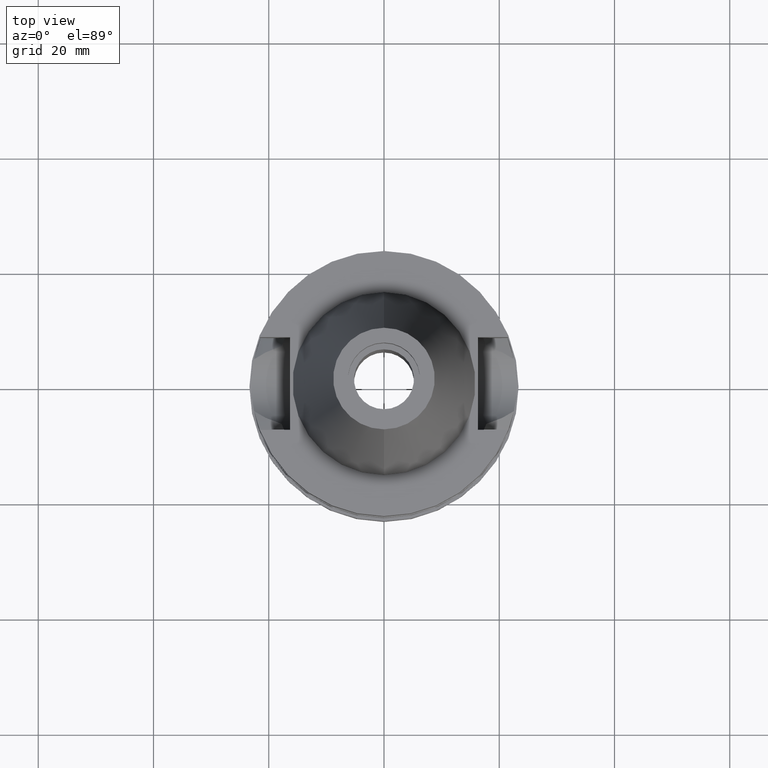
[diagram: clean part render]
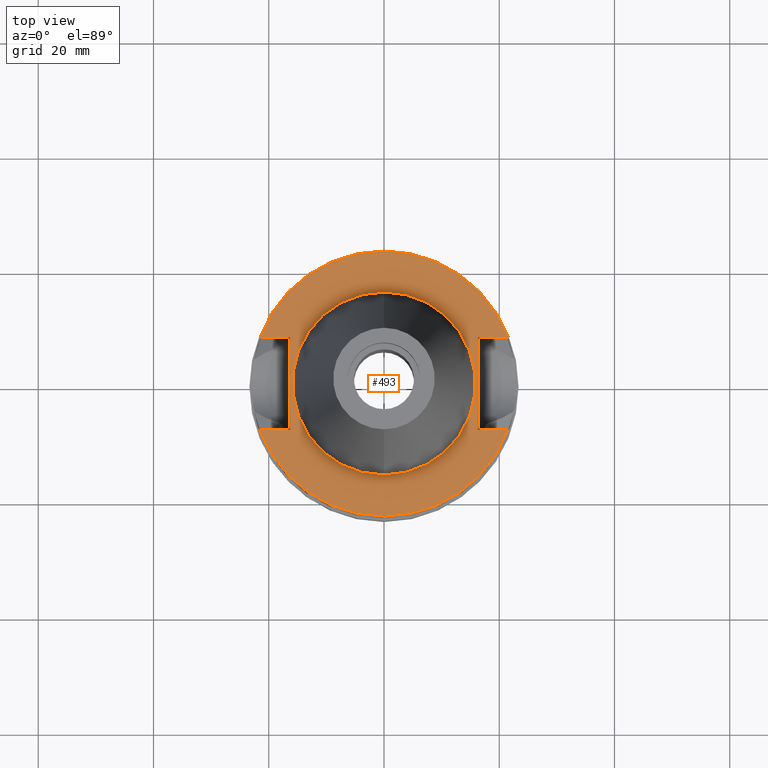
[diagram: same view with one face highlighted and labeled with its STEP entity id]
A machine part, top view. The second image highlights one B-rep face of the part: STEP entity #493.
In plain terms, the highlighted planar face has unit normal (0, 0, -1).
Its self-contained STEP definition (entity closure, byte-faithful):
#10 = VERTEX_POINT ( 'NONE', #2757 ) ;
#39 = AXIS2_PLACEMENT_3D ( 'NONE', #1466, #2415, #1002 ) ;
#50 = ORIENTED_EDGE ( 'NONE', *, *, #664, .F. ) ;
#113 = EDGE_CURVE ( 'NONE', #710, #2600, #1117, .T. ) ;
#189 = CARTESIAN_POINT ( 'NONE',  ( -16.29999999999999716, 8.050000000000000711, -1.000000000000000000 ) ) ;
#266 = DIRECTION ( 'NONE',  ( 1.000000000000000000, 9.380896855521999773E-14, 0.0000000000000000000 ) ) ;
#316 = CARTESIAN_POINT ( 'NONE',  ( 16.29999999999999716, 8.050000000000000711, -1.000000000000000000 ) ) ;
#341 = VECTOR ( 'NONE', #1131, 1000.000000000000000 ) ;
#372 = DIRECTION ( 'NONE',  ( -1.000000000000000000, -9.313164748262000573E-14, 0.0000000000000000000 ) ) ;
#393 = CARTESIAN_POINT ( 'NONE',  ( -16.29999999999999716, -8.050000000000000711, -1.000000000000000000 ) ) ;
#398 = DIRECTION ( 'NONE',  ( 0.0000000000000000000, 1.000000000000000000, 0.0000000000000000000 ) ) ;
#401 = CARTESIAN_POINT ( 'NONE',  ( 16.29999999999999716, 8.050000000000000711, -1.000000000000000000 ) ) ;
#406 = AXIS2_PLACEMENT_3D ( 'NONE', #1979, #618, #635 ) ;
#428 = VERTEX_POINT ( 'NONE', #401 ) ;
#436 = AXIS2_PLACEMENT_3D ( 'NONE', #2185, #1498, #1254 ) ;
#493 = ADVANCED_FACE ( 'NONE', ( #1981, #2905 ), #2684, .F. ) ;
#618 = DIRECTION ( 'NONE',  ( 0.0000000000000000000, 0.0000000000000000000, 1.000000000000000000 ) ) ;
#621 = CARTESIAN_POINT ( 'NONE',  ( 0.0000000000000000000, 0.0000000000000000000, -1.000000000000000000 ) ) ;
#632 = EDGE_CURVE ( 'NONE', #2179, #710, #2307, .T. ) ;
#635 = DIRECTION ( 'NONE',  ( 0.0000000000000000000, 1.000000000000000000, 0.0000000000000000000 ) ) ;
#664 = EDGE_CURVE ( 'NONE', #1783, #1447, #2551, .T. ) ;
#710 = VERTEX_POINT ( 'NONE', #2433 ) ;
#717 = CARTESIAN_POINT ( 'NONE',  ( -16.29999999999999716, 8.050000000000000711, -1.000000000000000000 ) ) ;
#735 = VECTOR ( 'NONE', #372, 1000.000000000000000 ) ;
#768 = CARTESIAN_POINT ( 'NONE',  ( -16.29999999999999716, -8.050000000000000711, -1.000000000000000000 ) ) ;
#784 = VECTOR ( 'NONE', #2860, 1000.000000000000000 ) ;
#814 = LINE ( 'NONE', #393, #735 ) ;
#849 = ORIENTED_EDGE ( 'NONE', *, *, #2936, .F. ) ;
#984 = VECTOR ( 'NONE', #1718, 1000.000000000000000 ) ;
#1002 = DIRECTION ( 'NONE',  ( 0.0000000000000000000, -1.000000000000000000, 0.0000000000000000000 ) ) ;
#1044 = DIRECTION ( 'NONE',  ( 1.000000000000000000, -9.347030801892000173E-14, 0.0000000000000000000 ) ) ;
#1049 = ORIENTED_EDGE ( 'NONE', *, *, #2429, .F. ) ;
#1089 = CARTESIAN_POINT ( 'NONE',  ( 16.29999999999999716, 8.050000000000000711, -1.000000000000000000 ) ) ;
#1092 = ORIENTED_EDGE ( 'NONE', *, *, #113, .F. ) ;
#1117 = CIRCLE ( 'NONE', #1314, 23.00000000000000000 ) ;
#1131 = DIRECTION ( 'NONE',  ( -1.000000000000000000, 9.347030801892000173E-14, 0.0000000000000000000 ) ) ;
#1174 = CARTESIAN_POINT ( 'NONE',  ( -16.29999999999999716, -8.050000000000000711, -1.000000000000000000 ) ) ;
#1208 = AXIS2_PLACEMENT_3D ( 'NONE', #2677, #2018, #1501 ) ;
#1250 = ORIENTED_EDGE ( 'NONE', *, *, #632, .F. ) ;
#1254 = DIRECTION ( 'NONE',  ( 0.0000000000000000000, -1.000000000000000000, 0.0000000000000000000 ) ) ;
#1314 = AXIS2_PLACEMENT_3D ( 'NONE', #621, #2744, #398 ) ;
#1322 = VERTEX_POINT ( 'NONE', #3006 ) ;
#1338 = VERTEX_POINT ( 'NONE', #1174 ) ;
#1359 = EDGE_CURVE ( 'NONE', #428, #2600, #1893, .T. ) ;
#1447 = VERTEX_POINT ( 'NONE', #2413 ) ;
#1466 = CARTESIAN_POINT ( 'NONE',  ( 0.0000000000000000000, 0.0000000000000000000, -1.000000000000000000 ) ) ;
#1468 = EDGE_CURVE ( 'NONE', #1338, #2179, #2361, .T. ) ;
#1498 = DIRECTION ( 'NONE',  ( 0.0000000000000000000, 0.0000000000000000000, -1.000000000000000000 ) ) ;
#1501 = DIRECTION ( 'NONE',  ( 0.0000000000000000000, -1.000000000000000000, 0.0000000000000000000 ) ) ;
#1559 = EDGE_CURVE ( 'NONE', #1338, #10, #814, .T. ) ;
#1583 = EDGE_CURVE ( 'NONE', #428, #1783, #2008, .T. ) ;
#1670 = ORIENTED_EDGE ( 'NONE', *, *, #1359, .T. ) ;
#1675 = ORIENTED_EDGE ( 'NONE', *, *, #1468, .F. ) ;
#1718 = DIRECTION ( 'NONE',  ( 0.0000000000000000000, -1.000000000000000000, 0.0000000000000000000 ) ) ;
#1746 = EDGE_CURVE ( 'NONE', #1322, #2687, #3030, .T. ) ;
#1783 = VERTEX_POINT ( 'NONE', #2479 ) ;
#1813 = ORIENTED_EDGE ( 'NONE', *, *, #1559, .T. ) ;
#1826 = EDGE_LOOP ( 'NONE', ( #2638, #1049 ) ) ;
#1893 = LINE ( 'NONE', #316, #2418 ) ;
#1976 = CARTESIAN_POINT ( 'NONE',  ( 16.29999999999999716, -8.050000000000000711, -1.000000000000000000 ) ) ;
#1979 = CARTESIAN_POINT ( 'NONE',  ( 0.0000000000000000000, 0.0000000000000000000, -1.000000000000000000 ) ) ;
#1981 = FACE_OUTER_BOUND ( 'NONE', #2763, .T. ) ;
#2008 = LINE ( 'NONE', #1089, #984 ) ;
#2018 = DIRECTION ( 'NONE',  ( 0.0000000000000000000, 0.0000000000000000000, 1.000000000000000000 ) ) ;
#2065 = CARTESIAN_POINT ( 'NONE',  ( 21.54524309446999908, 8.050000000000000711, -1.000000000000000000 ) ) ;
#2179 = VERTEX_POINT ( 'NONE', #717 ) ;
#2185 = CARTESIAN_POINT ( 'NONE',  ( 0.0000000000000000000, 0.0000000000000000000, -1.000000000000000000 ) ) ;
#2307 = LINE ( 'NONE', #189, #341 ) ;
#2361 = LINE ( 'NONE', #768, #784 ) ;
#2413 = CARTESIAN_POINT ( 'NONE',  ( 21.54524309446999908, -8.050000000000000711, -1.000000000000000000 ) ) ;
#2415 = DIRECTION ( 'NONE',  ( 0.0000000000000000000, 0.0000000000000000000, -1.000000000000000000 ) ) ;
#2418 = VECTOR ( 'NONE', #266, 1000.000000000000000 ) ;
#2429 = EDGE_CURVE ( 'NONE', #2687, #1322, #2537, .T. ) ;
#2433 = CARTESIAN_POINT ( 'NONE',  ( -21.54524309446999908, 8.050000000000000711, -1.000000000000000000 ) ) ;
#2457 = VECTOR ( 'NONE', #1044, 1000.000000000000000 ) ;
#2479 = CARTESIAN_POINT ( 'NONE',  ( 16.29999999999999716, -8.050000000000000711, -1.000000000000000000 ) ) ;
#2537 = CIRCLE ( 'NONE', #1208, 15.87500000000000000 ) ;
#2551 = LINE ( 'NONE', #1976, #2457 ) ;
#2588 = CIRCLE ( 'NONE', #436, 23.00000000000000000 ) ;
#2600 = VERTEX_POINT ( 'NONE', #2065 ) ;
#2638 = ORIENTED_EDGE ( 'NONE', *, *, #1746, .F. ) ;
#2677 = CARTESIAN_POINT ( 'NONE',  ( 0.0000000000000000000, 0.0000000000000000000, -1.000000000000000000 ) ) ;
#2684 = PLANE ( 'NONE',  #39 ) ;
#2687 = VERTEX_POINT ( 'NONE', #3029 ) ;
#2744 = DIRECTION ( 'NONE',  ( 0.0000000000000000000, 0.0000000000000000000, -1.000000000000000000 ) ) ;
#2757 = CARTESIAN_POINT ( 'NONE',  ( -21.54524309446999908, -8.050000000000000711, -1.000000000000000000 ) ) ;
#2763 = EDGE_LOOP ( 'NONE', ( #1813, #849, #50, #2773, #1670, #1092, #1250, #1675 ) ) ;
#2773 = ORIENTED_EDGE ( 'NONE', *, *, #1583, .F. ) ;
#2860 = DIRECTION ( 'NONE',  ( 0.0000000000000000000, 1.000000000000000000, 0.0000000000000000000 ) ) ;
#2905 = FACE_BOUND ( 'NONE', #1826, .T. ) ;
#2936 = EDGE_CURVE ( 'NONE', #1447, #10, #2588, .T. ) ;
#3006 = CARTESIAN_POINT ( 'NONE',  ( 0.0000000000000000000, 15.87500000000000000, -1.000000000000000000 ) ) ;
#3029 = CARTESIAN_POINT ( 'NONE',  ( 0.0000000000000000000, -15.87500000000000000, -1.000000000000000000 ) ) ;
#3030 = CIRCLE ( 'NONE', #406, 15.87500000000000000 ) ;